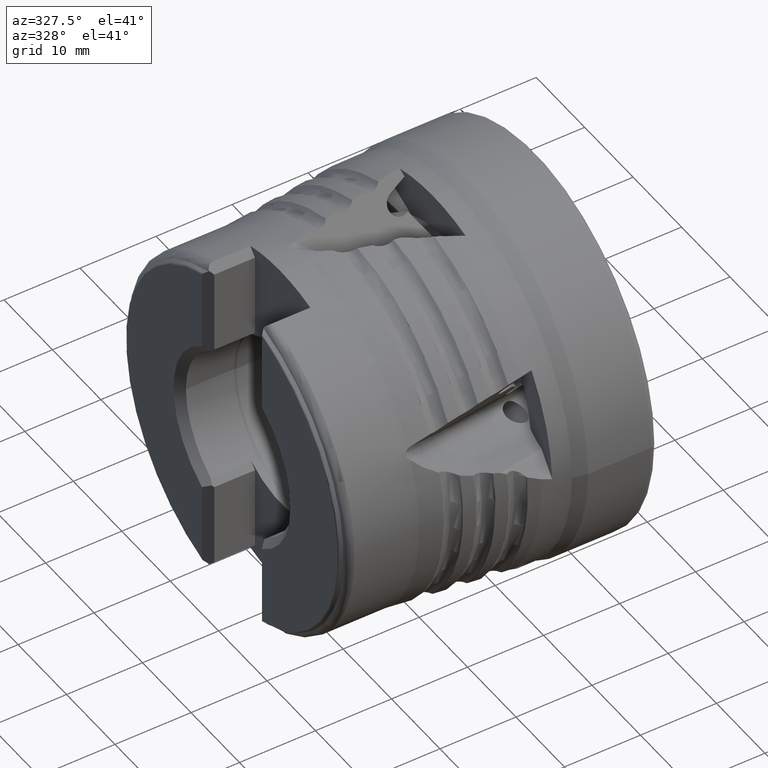
[diagram: clean part render]
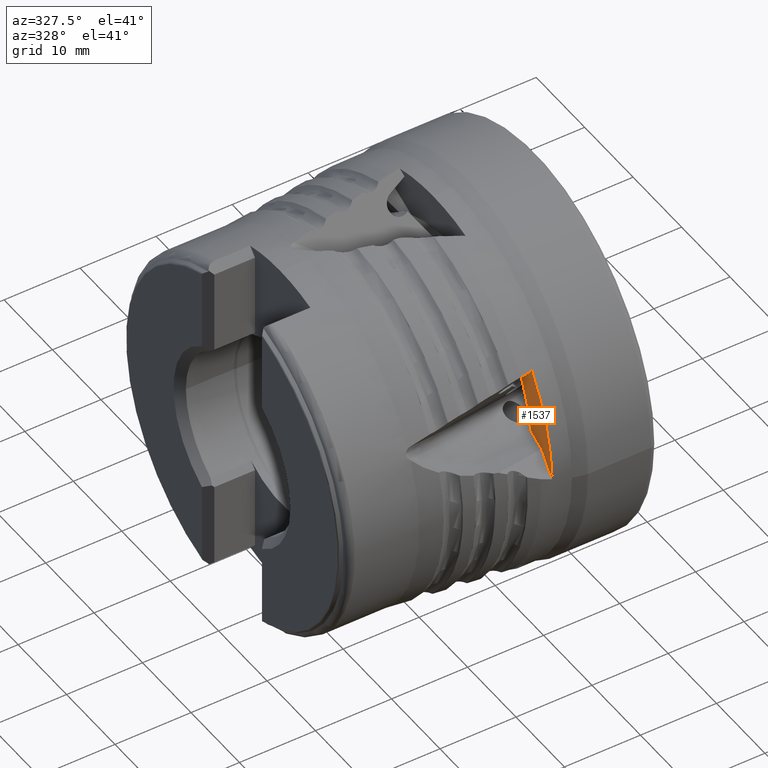
[diagram: same view with one face highlighted and labeled with its STEP entity id]
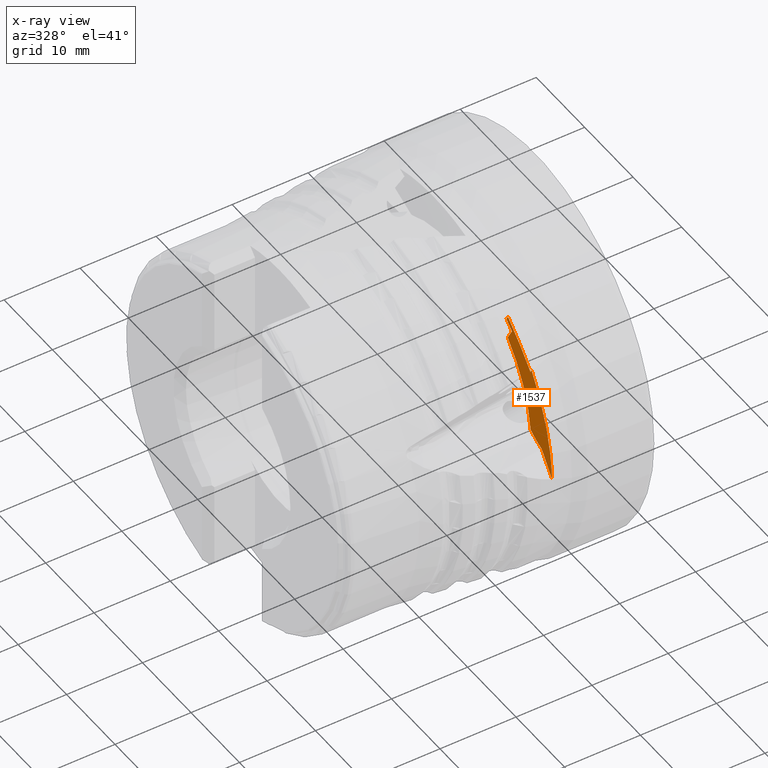
[diagram: x-ray of the same camera — body ghosted, the highlighted face saturated]
A machine part, auxiliary view. The second image highlights one B-rep face of the part: STEP entity #1537.
The next image is the same camera in x-ray: the body ghosted, the highlighted face saturated — about 0% of this face is hidden behind the body in this view.
In plain terms, the highlighted conical surface has half-angle 75.336 deg.
Its self-contained STEP definition (entity closure, byte-faithful):
#8 = B_SPLINE_CURVE_WITH_KNOTS ( 'NONE', 3,
 ( #390, #397, #388, #387 ),
 .UNSPECIFIED., .F., .F.,
 ( 4, 4 ),
 ( 0.001832992509553469200, 0.002744634043094589700 ),
 .UNSPECIFIED. ) ;
#122 = AXIS2_PLACEMENT_3D ( 'NONE', #9132, #9155, #9156 ) ;
#228 = B_SPLINE_CURVE_WITH_KNOTS ( 'NONE', 3,
 ( #9018, #9034, #9035, #9036, #9037, #9038 ),
 .UNSPECIFIED., .F., .F.,
 ( 4, 2, 4 ),
 ( 0.0008580668695771266600, 0.001093688195107999000, 0.001329309520638871500 ),
 .UNSPECIFIED. ) ;
#238 = B_SPLINE_CURVE_WITH_KNOTS ( 'NONE', 3,
 ( #5608, #5617, #5618, #5619 ),
 .UNSPECIFIED., .F., .F.,
 ( 4, 4 ),
 ( 0.0008074038974601341400, 0.002024322190615191000 ),
 .UNSPECIFIED. ) ;
#387 = CARTESIAN_POINT ( 'NONE',  ( -10.97183642939108600, -13.90308753954805900, 16.41652414346383500 ) ) ;
#388 = CARTESIAN_POINT ( 'NONE',  ( -11.04871235656412600, -14.08451791925214600, 16.64786042312167800 ) ) ;
#390 = CARTESIAN_POINT ( 'NONE',  ( -11.20247023425158700, -14.44737841880147800, 17.11053118457728300 ) ) ;
#397 = CARTESIAN_POINT ( 'NONE',  ( -11.12559037065506800, -14.26594820893075900, 16.87919607988311600 ) ) ;
#1537 = ADVANCED_FACE ( 'NONE', ( #7829 ), #7832, .F. ) ;
#1914 = EDGE_CURVE ( 'NONE', #12237, #12109, #8, .T. ) ;
#2204 = AXIS2_PLACEMENT_3D ( 'NONE', #3171, #3193, #3194 ) ;
#2638 = EDGE_CURVE ( 'NONE', #11461, #11492, #11438, .T. ) ;
#2756 = AXIS2_PLACEMENT_3D ( 'NONE', #11424, #11331, #11289 ) ;
#3171 = CARTESIAN_POINT ( 'NONE',  ( -11.77314234496912000, -2.256532460468214100E-015, 0.0000000000000000000 ) ) ;
#3193 = DIRECTION ( 'NONE',  ( 1.000000000000000000, 1.231745265854573400E-016, -0.0000000000000000000 ) ) ;
#3194 = DIRECTION ( 'NONE',  ( -1.411779024192722100E-016, 1.000000000000000000, 0.0000000000000000000 ) ) ;
#3743 = CARTESIAN_POINT ( 'NONE',  ( -11.51803747159915800, -19.66454773210154600, 13.04875750446223400 ) ) ;
#3757 = CARTESIAN_POINT ( 'NONE',  ( -11.60289451609010500, -19.87499467110998100, 13.31812334784017100 ) ) ;
#3758 = CARTESIAN_POINT ( 'NONE',  ( -11.68793665395544100, -20.08543561270591800, 13.58743668022733300 ) ) ;
#3759 = CARTESIAN_POINT ( 'NONE',  ( -11.77314234496911600, -20.29587125483774900, 13.85670361258590000 ) ) ;
#3953 = CARTESIAN_POINT ( 'NONE',  ( -9.831516371992062600, -12.32186377132366300, 11.93577761875204500 ) ) ;
#3963 = CARTESIAN_POINT ( 'NONE',  ( -10.19119147034881200, -13.17773638224234600, 13.02778604564801400 ) ) ;
#3964 = CARTESIAN_POINT ( 'NONE',  ( -10.55160610688488300, -14.03357811219537200, 14.11957514322510000 ) ) ;
#3965 = CARTESIAN_POINT ( 'NONE',  ( -10.91239809234583900, -14.88940376249138400, 15.21125188403854400 ) ) ;
#4160 = EDGE_CURVE ( 'NONE', #11540, #12250, #238, .T. ) ;
#4199 = EDGE_CURVE ( 'NONE', #11651, #12279, #12322, .T. ) ;
#4219 = EDGE_CURVE ( 'NONE', #12159, #11461, #12325, .T. ) ;
#4388 = EDGE_CURVE ( 'NONE', #11859, #12159, #10212, .T. ) ;
#4527 = EDGE_CURVE ( 'NONE', #11651, #11859, #12440, .T. ) ;
#4581 = EDGE_CURVE ( 'NONE', #11779, #11540, #12464, .T. ) ;
#4822 = EDGE_CURVE ( 'NONE', #12250, #12109, #12543, .T. ) ;
#5454 = CARTESIAN_POINT ( 'NONE',  ( -10.85614655235305600, -20.93981536262161600, 2.344215747623025900 ) ) ;
#5460 = CARTESIAN_POINT ( 'NONE',  ( -10.51668390849721400, -19.67287892503273400, 2.000739215539025600 ) ) ;
#5461 = CARTESIAN_POINT ( 'NONE',  ( -10.17188151772993300, -18.36481278256894000, 1.837281111311364300 ) ) ;
#5462 = CARTESIAN_POINT ( 'NONE',  ( -9.831516371992062600, -17.05264386808761400, 1.870414732495094800 ) ) ;
#5608 = CARTESIAN_POINT ( 'NONE',  ( -10.91239809234583900, -14.88940376249138400, 15.21125188403854400 ) ) ;
#5617 = CARTESIAN_POINT ( 'NONE',  ( -10.90435311092837100, -14.57890477542746100, 15.47215930247090300 ) ) ;
#5618 = CARTESIAN_POINT ( 'NONE',  ( -10.89901452912949700, -14.26761011875766100, 15.73218154105332200 ) ) ;
#5619 = CARTESIAN_POINT ( 'NONE',  ( -10.89640512214108800, -13.95551309667555300, 15.99131115072290800 ) ) ;
#5706 = CARTESIAN_POINT ( 'NONE',  ( -11.51803747159915800, -19.66454773210154600, 13.04875750446223400 ) ) ;
#5711 = CARTESIAN_POINT ( 'NONE',  ( -11.37408840212929600, -18.08423499539645400, 14.43535759630058000 ) ) ;
#5712 = CARTESIAN_POINT ( 'NONE',  ( -11.29246052890970000, -16.48439397422158600, 15.80257003027946200 ) ) ;
#5713 = CARTESIAN_POINT ( 'NONE',  ( -11.28058535441875100, -14.86269601471328600, 17.14808292158115700 ) ) ;
#5753 = CARTESIAN_POINT ( 'NONE',  ( -11.77314234496911800, -24.55581001016624000, 0.9709890548403096200 ) ) ;
#5764 = CARTESIAN_POINT ( 'NONE',  ( -11.46277686360636000, -23.35078421443705600, 1.426488900982371600 ) ) ;
#5765 = CARTESIAN_POINT ( 'NONE',  ( -11.15628042432825700, -22.14550673395904200, 1.883834593989501600 ) ) ;
#5766 = CARTESIAN_POINT ( 'NONE',  ( -10.85614655235305600, -20.93981536262161600, 2.344215747623025900 ) ) ;
#7476 = ORIENTED_EDGE ( 'NONE', *, *, #2638, .F. ) ;
#7477 = ORIENTED_EDGE ( 'NONE', *, *, #4219, .F. ) ;
#7478 = ORIENTED_EDGE ( 'NONE', *, *, #4388, .F. ) ;
#7479 = ORIENTED_EDGE ( 'NONE', *, *, #4527, .F. ) ;
#7480 = ORIENTED_EDGE ( 'NONE', *, *, #4199, .T. ) ;
#7481 = ORIENTED_EDGE ( 'NONE', *, *, #10654, .F. ) ;
#7482 = ORIENTED_EDGE ( 'NONE', *, *, #1914, .T. ) ;
#7483 = ORIENTED_EDGE ( 'NONE', *, *, #4822, .F. ) ;
#7484 = ORIENTED_EDGE ( 'NONE', *, *, #4160, .F. ) ;
#7485 = ORIENTED_EDGE ( 'NONE', *, *, #4581, .F. ) ;
#7486 = ORIENTED_EDGE ( 'NONE', *, *, #11201, .T. ) ;
#7829 = FACE_OUTER_BOUND ( 'NONE', #12832, .T. ) ;
#7832 = CONICAL_SURFACE ( 'NONE', #2756, 24.57499999999999900, 1.314863088530849700 ) ;
#8875 = CARTESIAN_POINT ( 'NONE',  ( -10.89640512214108800, -13.95551309667555300, 15.99131115072290800 ) ) ;
#8879 = CARTESIAN_POINT ( 'NONE',  ( -10.89588911204696800, -13.89379592704408500, 16.04255401734761600 ) ) ;
#8880 = CARTESIAN_POINT ( 'NONE',  ( -10.90391170892334400, -13.85292069759305600, 16.11821608283672400 ) ) ;
#8881 = CARTESIAN_POINT ( 'NONE',  ( -10.93168576963110000, -13.83368461611200200, 16.27428634863966600 ) ) ;
#8882 = CARTESIAN_POINT ( 'NONE',  ( -10.95152267320559500, -13.85514623160580400, 16.35539566079526700 ) ) ;
#8883 = CARTESIAN_POINT ( 'NONE',  ( -10.97183642939108600, -13.90308753954805900, 16.41652414346383500 ) ) ;
#9018 = CARTESIAN_POINT ( 'NONE',  ( -11.20247023425158700, -14.44737841880147800, 17.11053118457728300 ) ) ;
#9034 = CARTESIAN_POINT ( 'NONE',  ( -11.22232296401062600, -14.49422924238764700, 17.17026897679521700 ) ) ;
#9035 = CARTESIAN_POINT ( 'NONE',  ( -11.24256390221678200, -14.56677966765559300, 17.21031318514216900 ) ) ;
#9036 = CARTESIAN_POINT ( 'NONE',  ( -11.27154152177071800, -14.72110657439967900, 17.22443144852661900 ) ) ;
#9037 = CARTESIAN_POINT ( 'NONE',  ( -11.28013964898338600, -14.80182957476142000, 17.19858343502307100 ) ) ;
#9038 = CARTESIAN_POINT ( 'NONE',  ( -11.28058535441875100, -14.86269601471328600, 17.14808292158115700 ) ) ;
#9132 = CARTESIAN_POINT ( 'NONE',  ( -9.831516371992064400, -2.017373600440737400E-015, 0.0000000000000000000 ) ) ;
#9155 = DIRECTION ( 'NONE',  ( 1.000000000000000000, 1.231745265854573400E-016, -0.0000000000000000000 ) ) ;
#9156 = DIRECTION ( 'NONE',  ( -1.011210757819913000E-016, 1.000000000000000000, 0.0000000000000000000 ) ) ;
#9165 = CARTESIAN_POINT ( 'NONE',  ( -10.85614655235305600, -20.93981536262161600, 2.344215747623025900 ) ) ;
#9189 = CARTESIAN_POINT ( 'NONE',  ( -9.831516371992062600, -17.05264386808761400, 1.870414732495094800 ) ) ;
#9223 = CARTESIAN_POINT ( 'NONE',  ( -10.91239809234583900, -14.88940376249138400, 15.21125188403854400 ) ) ;
#9317 = CARTESIAN_POINT ( 'NONE',  ( -11.51803747159915800, -19.66454773210154600, 13.04875750446223400 ) ) ;
#9430 = CARTESIAN_POINT ( 'NONE',  ( -9.831516371992062600, -12.32186377132366300, 11.93577761875204500 ) ) ;
#9468 = CARTESIAN_POINT ( 'NONE',  ( -11.77314234496911600, -20.29587125483774900, 13.85670361258590000 ) ) ;
#9659 = CARTESIAN_POINT ( 'NONE',  ( -10.97183642939108600, -13.90308753954805900, 16.41652414346383500 ) ) ;
#10212 = CIRCLE ( 'NONE', #2204, 24.57499999999999900 ) ;
#10546 = CIRCLE ( 'NONE', #122, 17.15491516048274400 ) ;
#10654 = EDGE_CURVE ( 'NONE', #12237, #12279, #228, .T. ) ;
#10714 = CARTESIAN_POINT ( 'NONE',  ( -11.77314234496911800, -24.55581001016624000, 0.9709890548403096200 ) ) ;
#10782 = CARTESIAN_POINT ( 'NONE',  ( -11.20247023425158700, -14.44737841880147800, 17.11053118457728300 ) ) ;
#10795 = CARTESIAN_POINT ( 'NONE',  ( -10.89640512214108800, -13.95551309667555300, 15.99131115072290800 ) ) ;
#10823 = CARTESIAN_POINT ( 'NONE',  ( -11.28058535441875100, -14.86269601471328600, 17.14808292158115700 ) ) ;
#11201 = EDGE_CURVE ( 'NONE', #11779, #11492, #10546, .T. ) ;
#11289 = DIRECTION ( 'NONE',  ( 1.411779024192722100E-016, -1.000000000000000000, 0.0000000000000000000 ) ) ;
#11331 = DIRECTION ( 'NONE',  ( -1.000000000000000000, -1.231745265854573400E-016, 0.0000000000000000000 ) ) ;
#11424 = CARTESIAN_POINT ( 'NONE',  ( -11.77314234496912000, -2.256532460468214100E-015, 0.0000000000000000000 ) ) ;
#11438 = B_SPLINE_CURVE_WITH_KNOTS ( 'NONE', 3,
 ( #5454, #5460, #5461, #5462 ),
 .UNSPECIFIED., .F., .F.,
 ( 4, 4 ),
 ( 3.496446946337351300E-018, 0.004058103892170846300 ),
 .UNSPECIFIED. ) ;
#11461 = VERTEX_POINT ( 'NONE', #9165 ) ;
#11492 = VERTEX_POINT ( 'NONE', #9189 ) ;
#11540 = VERTEX_POINT ( 'NONE', #9223 ) ;
#11651 = VERTEX_POINT ( 'NONE', #9317 ) ;
#11779 = VERTEX_POINT ( 'NONE', #9430 ) ;
#11859 = VERTEX_POINT ( 'NONE', #9468 ) ;
#12109 = VERTEX_POINT ( 'NONE', #9659 ) ;
#12159 = VERTEX_POINT ( 'NONE', #10714 ) ;
#12237 = VERTEX_POINT ( 'NONE', #10782 ) ;
#12250 = VERTEX_POINT ( 'NONE', #10795 ) ;
#12279 = VERTEX_POINT ( 'NONE', #10823 ) ;
#12322 = B_SPLINE_CURVE_WITH_KNOTS ( 'NONE', 3,
 ( #5706, #5711, #5712, #5713 ),
 .UNSPECIFIED., .F., .F.,
 ( 4, 4 ),
 ( 0.0005147281065786586500, 0.006832843161858362600 ),
 .UNSPECIFIED. ) ;
#12325 = B_SPLINE_CURVE_WITH_KNOTS ( 'NONE', 3,
 ( #5753, #5764, #5765, #5766 ),
 .UNSPECIFIED., .F., .F.,
 ( 4, 4 ),
 ( 8.538526570924159400E-007, 0.003975960690124455600 ),
 .UNSPECIFIED. ) ;
#12440 = B_SPLINE_CURVE_WITH_KNOTS ( 'NONE', 3,
 ( #3743, #3757, #3758, #3759 ),
 .UNSPECIFIED., .F., .F.,
 ( 4, 4 ),
 ( 0.007147700080478921200, 0.008204297210213287000 ),
 .UNSPECIFIED. ) ;
#12464 = B_SPLINE_CURVE_WITH_KNOTS ( 'NONE', 3,
 ( #3953, #3963, #3964, #3965 ),
 .UNSPECIFIED., .F., .F.,
 ( 4, 4 ),
 ( 7.970006906151425600E-007, 0.004300715422497952500 ),
 .UNSPECIFIED. ) ;
#12543 = B_SPLINE_CURVE_WITH_KNOTS ( 'NONE', 3,
 ( #8875, #8879, #8880, #8881, #8882, #8883 ),
 .UNSPECIFIED., .F., .F.,
 ( 4, 2, 4 ),
 ( 0.0002202380861684187100, 0.0004597763680214071400, 0.0006993146498743955400 ),
 .UNSPECIFIED. ) ;
#12832 = EDGE_LOOP ( 'NONE', ( #7476, #7477, #7478, #7479, #7480, #7481, #7482, #7483, #7484, #7485, #7486 ) ) ;